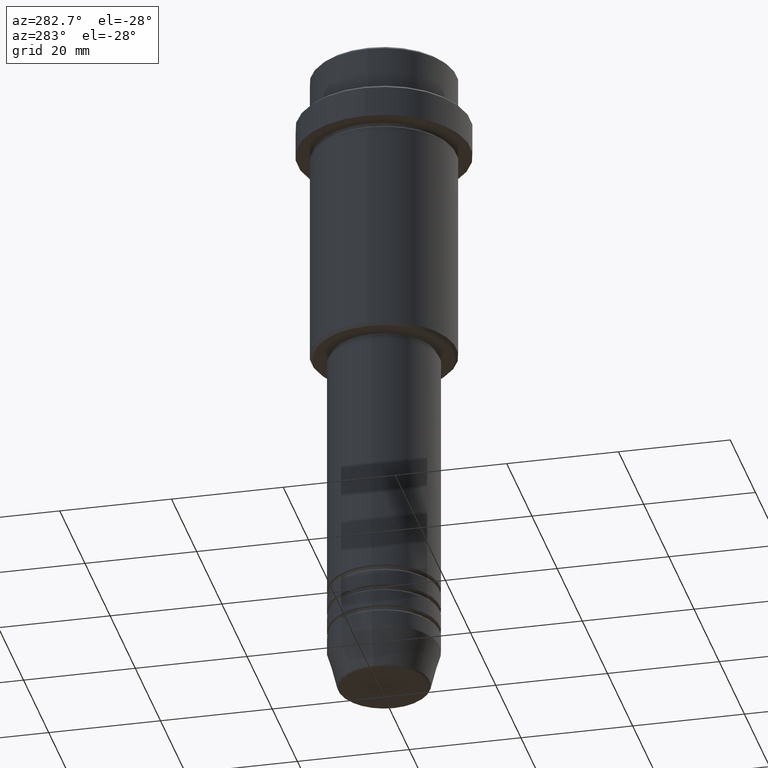
[diagram: clean part render]
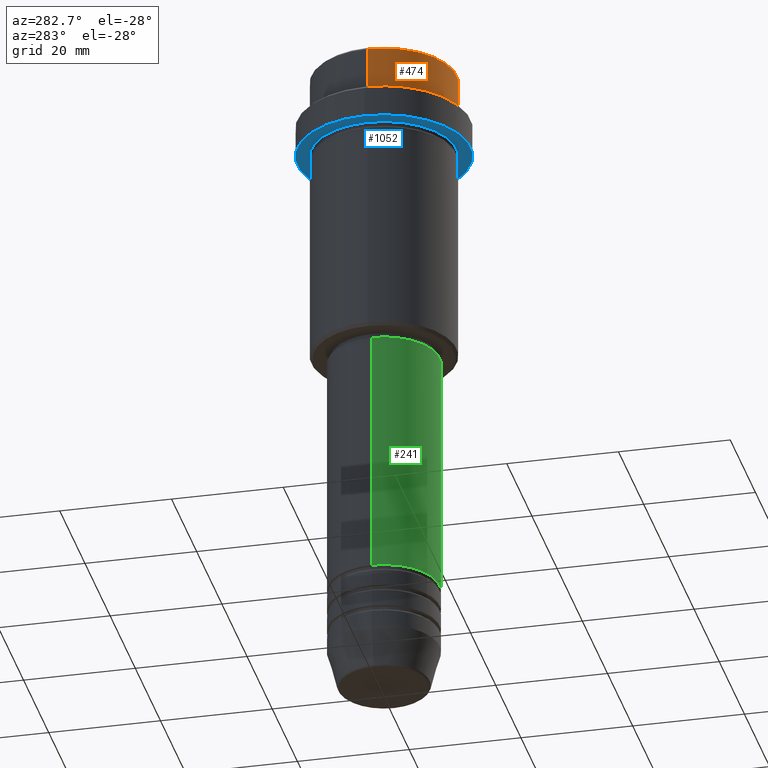
[diagram: same view with three faces highlighted in distinct colors, each labeled with its STEP entity id]
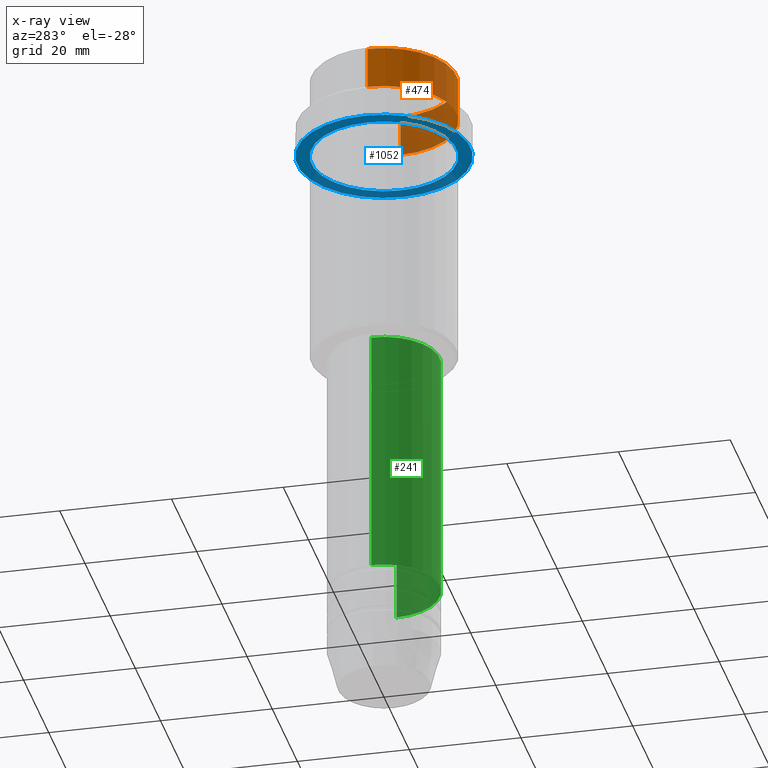
[diagram: x-ray of the same camera — body ghosted, the three highlighted faces saturated]
A machine part, auxiliary view with three faces highlighted in distinct colors.
The next image is the same camera in x-ray (body ghosted, the three faces saturated) — at least one of them is partly hidden behind the body in this view.
Their STEP definitions:

[orange] entity #474 — the highlighted cylindrical surface (partial cylindrical patch) has radius 13 mm, axis along (-0, -0, 1).
#53 = CARTESIAN_POINT ( 'NONE',  ( -12.99999999999999822, 1.592040838891558898E-15, -0.5000000000000176525 ) ) ;
#119 = LINE ( 'NONE', #562, #802 ) ;
#131 = CARTESIAN_POINT ( 'NONE',  ( -12.99999999999999822, 1.592040838891558898E-15, -7.999999999999998224 ) ) ;
#150 = CARTESIAN_POINT ( 'NONE',  ( 0.000000000000000000, 0.000000000000000000, 0.000000000000000000 ) ) ;
#164 = ORIENTED_EDGE ( 'NONE', *, *, #1002, .F. ) ;
#233 = EDGE_LOOP ( 'NONE', ( #164, #1329, #1315, #1133 ) ) ;
#301 = AXIS2_PLACEMENT_3D ( 'NONE', #455, #340, #1257 ) ;
#304 = EDGE_CURVE ( 'NONE', #933, #603, #119, .T. ) ;
#313 = LINE ( 'NONE', #1178, #392 ) ;
#340 = DIRECTION ( 'NONE',  ( 0.000000000000000000, 0.000000000000000000, -1.000000000000000000 ) ) ;
#392 = VECTOR ( 'NONE', #402, 1000.000000000000000 ) ;
#402 = DIRECTION ( 'NONE',  ( -0.000000000000000000, -0.000000000000000000, 1.000000000000000000 ) ) ;
#404 = CARTESIAN_POINT ( 'NONE',  ( 0.000000000000000000, 0.000000000000000000, -7.999999999999998224 ) ) ;
#410 = CARTESIAN_POINT ( 'NONE',  ( 12.99999999999999822, 0.000000000000000000, -0.5000000000000176525 ) ) ;
#455 = CARTESIAN_POINT ( 'NONE',  ( 0.000000000000000000, 0.000000000000000000, -0.5000000000000176525 ) ) ;
#465 = CIRCLE ( 'NONE', #301, 12.99999999999999822 ) ;
#466 = CYLINDRICAL_SURFACE ( 'NONE', #1211, 12.99999999999999822 ) ;
#474 = ADVANCED_FACE ( 'NONE', ( #1238 ), #466, .T. ) ;
#477 = VERTEX_POINT ( 'NONE', #131 ) ;
#562 = CARTESIAN_POINT ( 'NONE',  ( 12.99999999999999822, 0.000000000000000000, 0.000000000000000000 ) ) ;
#563 = VERTEX_POINT ( 'NONE', #53 ) ;
#570 = EDGE_CURVE ( 'NONE', #477, #933, #919, .T. ) ;
#590 = DIRECTION ( 'NONE',  ( -0.000000000000000000, -0.000000000000000000, 1.000000000000000000 ) ) ;
#597 = AXIS2_PLACEMENT_3D ( 'NONE', #404, #732, #1037 ) ;
#603 = VERTEX_POINT ( 'NONE', #410 ) ;
#732 = DIRECTION ( 'NONE',  ( -0.000000000000000000, -0.000000000000000000, 1.000000000000000000 ) ) ;
#802 = VECTOR ( 'NONE', #991, 1000.000000000000000 ) ;
#849 = EDGE_CURVE ( 'NONE', #603, #563, #465, .T. ) ;
#919 = CIRCLE ( 'NONE', #597, 12.99999999999999822 ) ;
#933 = VERTEX_POINT ( 'NONE', #950 ) ;
#950 = CARTESIAN_POINT ( 'NONE',  ( 12.99999999999999822, 0.000000000000000000, -7.999999999999998224 ) ) ;
#991 = DIRECTION ( 'NONE',  ( -0.000000000000000000, -0.000000000000000000, 1.000000000000000000 ) ) ;
#1002 = EDGE_CURVE ( 'NONE', #477, #563, #313, .T. ) ;
#1020 = DIRECTION ( 'NONE',  ( 1.000000000000000000, 0.000000000000000000, 0.000000000000000000 ) ) ;
#1037 = DIRECTION ( 'NONE',  ( 1.000000000000000000, 0.000000000000000000, 0.000000000000000000 ) ) ;
#1133 = ORIENTED_EDGE ( 'NONE', *, *, #849, .T. ) ;
#1178 = CARTESIAN_POINT ( 'NONE',  ( -12.99999999999999822, 1.592040838891558898E-15, 0.000000000000000000 ) ) ;
#1211 = AXIS2_PLACEMENT_3D ( 'NONE', #150, #590, #1020 ) ;
#1238 = FACE_OUTER_BOUND ( 'NONE', #233, .T. ) ;
#1257 = DIRECTION ( 'NONE',  ( 1.000000000000000000, 0.000000000000000000, 0.000000000000000000 ) ) ;
#1315 = ORIENTED_EDGE ( 'NONE', *, *, #304, .T. ) ;
#1329 = ORIENTED_EDGE ( 'NONE', *, *, #570, .T. ) ;

[blue] entity #1052 — the highlighted planar face has unit normal (0, 0, -1).
#24 = CARTESIAN_POINT ( 'NONE',  ( 12.99999999999999645, 1.592040838891558701E-15, -15.00000000000000000 ) ) ;
#26 = CARTESIAN_POINT ( 'NONE',  ( 0.000000000000000000, 0.000000000000000000, -15.00000000000000000 ) ) ;
#47 = DIRECTION ( 'NONE',  ( -1.000000000000000000, 0.000000000000000000, 0.000000000000000000 ) ) ;
#60 = EDGE_CURVE ( 'NONE', #568, #1069, #134, .T. ) ;
#68 = CIRCLE ( 'NONE', #118, 15.50000000000000000 ) ;
#89 = AXIS2_PLACEMENT_3D ( 'NONE', #680, #701, #47 ) ;
#106 = EDGE_LOOP ( 'NONE', ( #331, #791 ) ) ;
#118 = AXIS2_PLACEMENT_3D ( 'NONE', #940, #898, #1001 ) ;
#134 = CIRCLE ( 'NONE', #295, 15.50000000000000000 ) ;
#169 = EDGE_LOOP ( 'NONE', ( #1100, #846 ) ) ;
#204 = CIRCLE ( 'NONE', #89, 12.99999999999999645 ) ;
#295 = AXIS2_PLACEMENT_3D ( 'NONE', #1276, #633, #946 ) ;
#331 = ORIENTED_EDGE ( 'NONE', *, *, #60, .F. ) ;
#335 = EDGE_CURVE ( 'NONE', #1129, #1293, #204, .T. ) ;
#450 = EDGE_CURVE ( 'NONE', #1293, #1129, #460, .T. ) ;
#460 = CIRCLE ( 'NONE', #1348, 12.99999999999999645 ) ;
#519 = CARTESIAN_POINT ( 'NONE',  ( -15.50000000000000000, 1.898202538678397557E-15, -15.00000000000000000 ) ) ;
#532 = FACE_BOUND ( 'NONE', #169, .T. ) ;
#568 = VERTEX_POINT ( 'NONE', #742 ) ;
#631 = PLANE ( 'NONE',  #1121 ) ;
#633 = DIRECTION ( 'NONE',  ( -0.000000000000000000, -0.000000000000000000, 1.000000000000000000 ) ) ;
#680 = CARTESIAN_POINT ( 'NONE',  ( 0.000000000000000000, 0.000000000000000000, -15.00000000000000000 ) ) ;
#694 = DIRECTION ( 'NONE',  ( -0.000000000000000000, -0.000000000000000000, 1.000000000000000000 ) ) ;
#701 = DIRECTION ( 'NONE',  ( -0.000000000000000000, -0.000000000000000000, 1.000000000000000000 ) ) ;
#742 = CARTESIAN_POINT ( 'NONE',  ( 15.50000000000000000, 0.000000000000000000, -15.00000000000000000 ) ) ;
#791 = ORIENTED_EDGE ( 'NONE', *, *, #877, .F. ) ;
#846 = ORIENTED_EDGE ( 'NONE', *, *, #335, .T. ) ;
#877 = EDGE_CURVE ( 'NONE', #1069, #568, #68, .T. ) ;
#898 = DIRECTION ( 'NONE',  ( -0.000000000000000000, -0.000000000000000000, 1.000000000000000000 ) ) ;
#940 = CARTESIAN_POINT ( 'NONE',  ( 0.000000000000000000, 0.000000000000000000, -15.00000000000000000 ) ) ;
#946 = DIRECTION ( 'NONE',  ( 1.000000000000000000, 0.000000000000000000, 0.000000000000000000 ) ) ;
#970 = FACE_OUTER_BOUND ( 'NONE', #106, .T. ) ;
#1001 = DIRECTION ( 'NONE',  ( 1.000000000000000000, 0.000000000000000000, 0.000000000000000000 ) ) ;
#1052 = ADVANCED_FACE ( 'NONE', ( #532, #970 ), #631, .T. ) ;
#1069 = VERTEX_POINT ( 'NONE', #519 ) ;
#1100 = ORIENTED_EDGE ( 'NONE', *, *, #450, .T. ) ;
#1121 = AXIS2_PLACEMENT_3D ( 'NONE', #1155, #1287, #1400 ) ;
#1129 = VERTEX_POINT ( 'NONE', #24 ) ;
#1137 = CARTESIAN_POINT ( 'NONE',  ( -12.99999999999999645, 0.000000000000000000, -15.00000000000000000 ) ) ;
#1155 = CARTESIAN_POINT ( 'NONE',  ( 0.000000000000000000, 15.50000000000000000, -15.00000000000000000 ) ) ;
#1276 = CARTESIAN_POINT ( 'NONE',  ( 0.000000000000000000, 0.000000000000000000, -15.00000000000000000 ) ) ;
#1287 = DIRECTION ( 'NONE',  ( 0.000000000000000000, 0.000000000000000000, -1.000000000000000000 ) ) ;
#1293 = VERTEX_POINT ( 'NONE', #1137 ) ;
#1335 = DIRECTION ( 'NONE',  ( -1.000000000000000000, 0.000000000000000000, 0.000000000000000000 ) ) ;
#1348 = AXIS2_PLACEMENT_3D ( 'NONE', #26, #694, #1335 ) ;
#1400 = DIRECTION ( 'NONE',  ( -1.000000000000000000, 0.000000000000000000, -0.000000000000000000 ) ) ;

[green] entity #241 — the highlighted cylindrical surface (partial cylindrical patch) has radius 10 mm, axis along (-0, -0, 1).
#16 = DIRECTION ( 'NONE',  ( 1.000000000000000000, 0.000000000000000000, 0.000000000000000000 ) ) ;
#30 = VERTEX_POINT ( 'NONE', #1356 ) ;
#96 = CARTESIAN_POINT ( 'NONE',  ( 10.00000000000000178, 0.000000000000000000, 0.000000000000000000 ) ) ;
#207 = EDGE_CURVE ( 'NONE', #1405, #30, #975, .T. ) ;
#217 = CARTESIAN_POINT ( 'NONE',  ( -10.00000000000000178, 1.224646799147353454E-15, -56.00000000000002132 ) ) ;
#241 = ADVANCED_FACE ( 'NONE', ( #336 ), #872, .T. ) ;
#250 = AXIS2_PLACEMENT_3D ( 'NONE', #267, #278, #16 ) ;
#258 = VERTEX_POINT ( 'NONE', #1199 ) ;
#266 = VERTEX_POINT ( 'NONE', #217 ) ;
#267 = CARTESIAN_POINT ( 'NONE',  ( 0.000000000000000000, 0.000000000000000000, -56.00000000000002132 ) ) ;
#278 = DIRECTION ( 'NONE',  ( -0.000000000000000000, -0.000000000000000000, 1.000000000000000000 ) ) ;
#310 = DIRECTION ( 'NONE',  ( -0.000000000000000000, -0.000000000000000000, 1.000000000000000000 ) ) ;
#325 = CARTESIAN_POINT ( 'NONE',  ( 0.000000000000000000, 0.000000000000000000, 0.000000000000000000 ) ) ;
#336 = FACE_OUTER_BOUND ( 'NONE', #418, .T. ) ;
#363 = AXIS2_PLACEMENT_3D ( 'NONE', #325, #766, #544 ) ;
#418 = EDGE_LOOP ( 'NONE', ( #1341, #1385, #635, #1388 ) ) ;
#486 = VECTOR ( 'NONE', #938, 1000.000000000000000 ) ;
#544 = DIRECTION ( 'NONE',  ( 1.000000000000000000, 0.000000000000000000, 0.000000000000000000 ) ) ;
#569 = DIRECTION ( 'NONE',  ( -0.000000000000000000, -0.000000000000000000, 1.000000000000000000 ) ) ;
#574 = DIRECTION ( 'NONE',  ( 1.000000000000000000, 0.000000000000000000, 0.000000000000000000 ) ) ;
#578 = AXIS2_PLACEMENT_3D ( 'NONE', #1217, #569, #574 ) ;
#635 = ORIENTED_EDGE ( 'NONE', *, *, #207, .T. ) ;
#751 = CARTESIAN_POINT ( 'NONE',  ( 10.00000000000000000, 0.000000000000000000, -100.9999999999999005 ) ) ;
#766 = DIRECTION ( 'NONE',  ( -0.000000000000000000, -0.000000000000000000, 1.000000000000000000 ) ) ;
#796 = EDGE_CURVE ( 'NONE', #266, #30, #804, .T. ) ;
#804 = CIRCLE ( 'NONE', #250, 10.00000000000000178 ) ;
#872 = CYLINDRICAL_SURFACE ( 'NONE', #363, 10.00000000000000178 ) ;
#938 = DIRECTION ( 'NONE',  ( -0.000000000000000000, -0.000000000000000000, 1.000000000000000000 ) ) ;
#941 = VECTOR ( 'NONE', #310, 1000.000000000000000 ) ;
#975 = LINE ( 'NONE', #96, #941 ) ;
#1107 = EDGE_CURVE ( 'NONE', #258, #1405, #1259, .T. ) ;
#1127 = CARTESIAN_POINT ( 'NONE',  ( -10.00000000000000178, 1.224646799147353454E-15, 0.000000000000000000 ) ) ;
#1199 = CARTESIAN_POINT ( 'NONE',  ( -10.00000000000000000, 1.224646799147353256E-15, -100.9999999999999005 ) ) ;
#1217 = CARTESIAN_POINT ( 'NONE',  ( 0.000000000000000000, 0.000000000000000000, -100.9999999999999005 ) ) ;
#1259 = CIRCLE ( 'NONE', #578, 10.00000000000000000 ) ;
#1268 = EDGE_CURVE ( 'NONE', #258, #266, #1357, .T. ) ;
#1341 = ORIENTED_EDGE ( 'NONE', *, *, #1268, .F. ) ;
#1356 = CARTESIAN_POINT ( 'NONE',  ( 10.00000000000000178, 0.000000000000000000, -56.00000000000002132 ) ) ;
#1357 = LINE ( 'NONE', #1127, #486 ) ;
#1385 = ORIENTED_EDGE ( 'NONE', *, *, #1107, .T. ) ;
#1388 = ORIENTED_EDGE ( 'NONE', *, *, #796, .F. ) ;
#1405 = VERTEX_POINT ( 'NONE', #751 ) ;